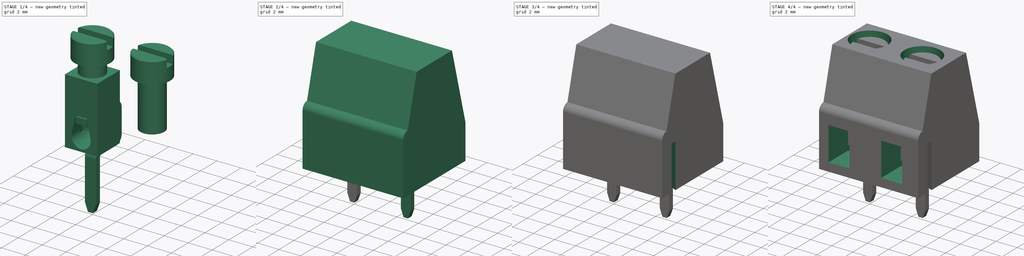
[diagram: build sequence overview — one tinted view per stage of 4, left to right]
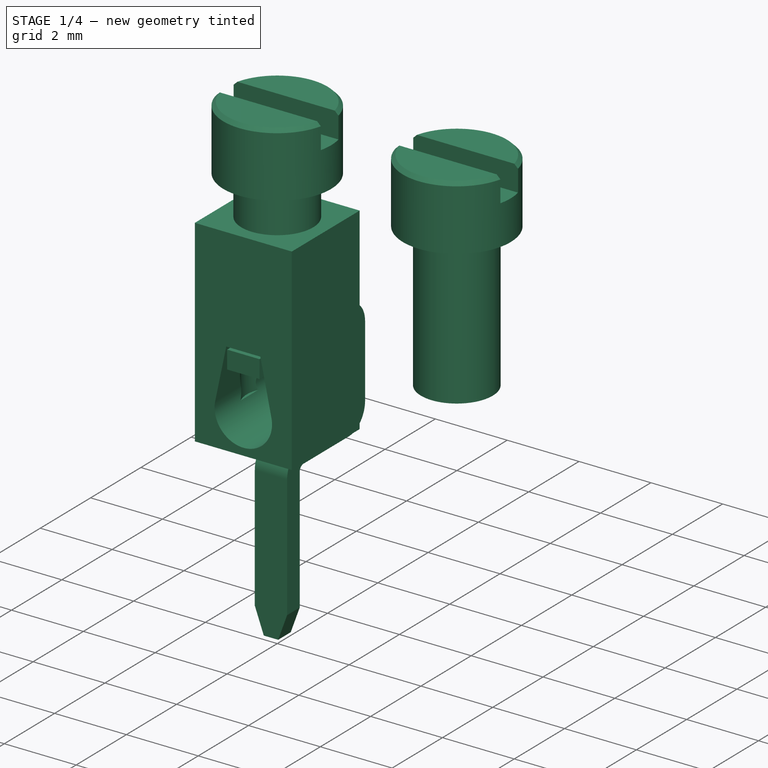
[diagram: stage 1 of 4 — iso view after this stage's code; geometry added in this stage tinted green]
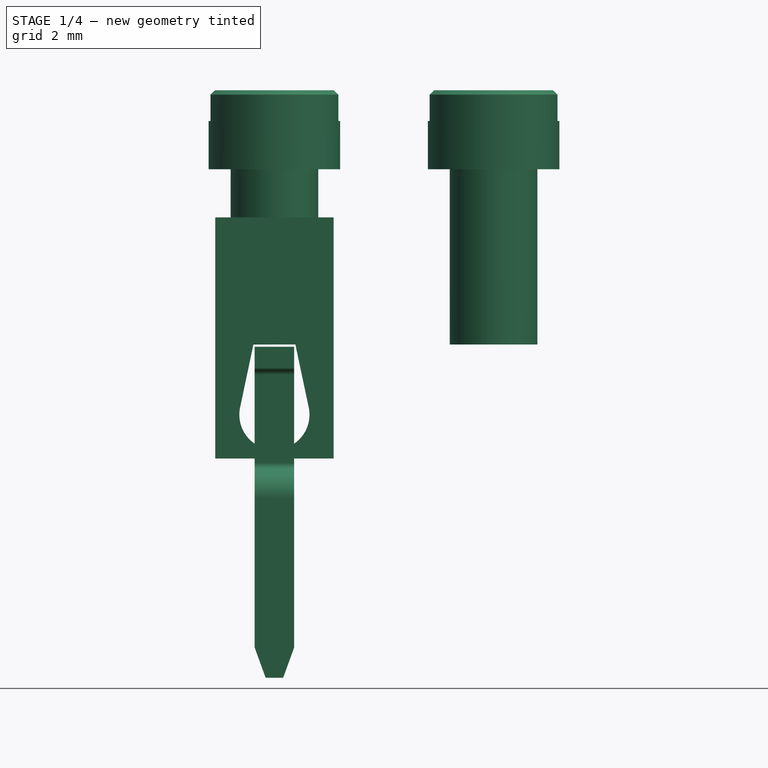
[diagram: stage 1 of 4 — front view after this stage's code; geometry added in this stage tinted green]
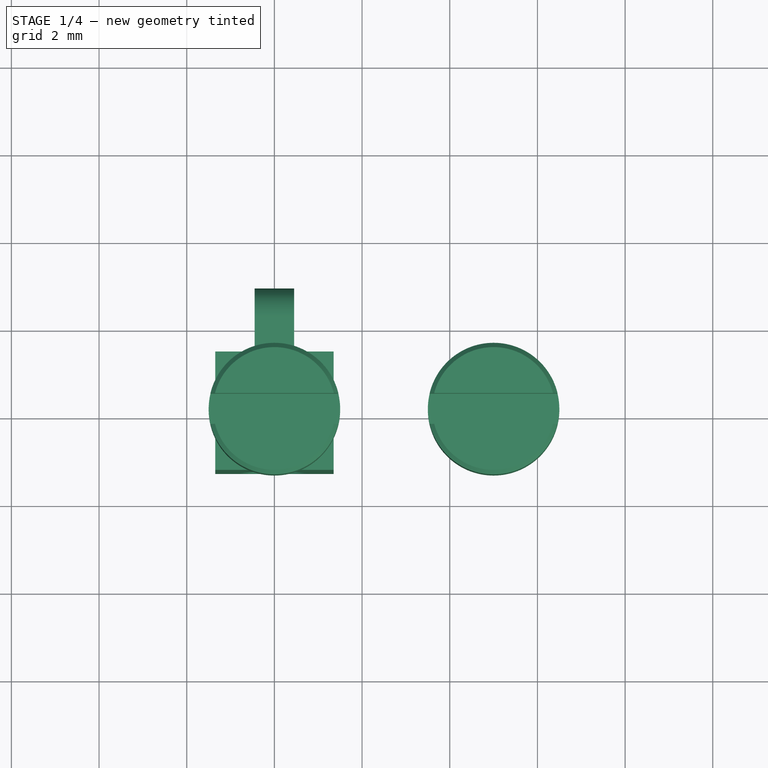
[diagram: stage 1 of 4 — top view after this stage's code; geometry added in this stage tinted green]
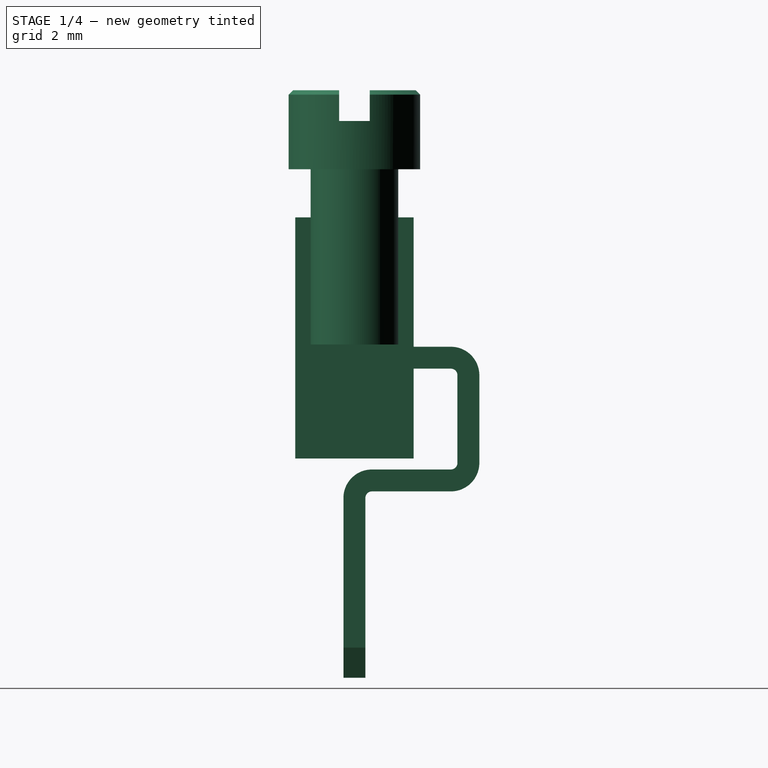
[diagram: stage 1 of 4 — right view after this stage's code; geometry added in this stage tinted green]
FCSTD DOCUMENT  (FreeCAD 1.0R38806 (Git))
Label: Amphenol ICC 01x02
License: All rights reserved
LicenseURL: http://en.wikipedia.org/wiki/All_rights_reserved
objects: Sketcher::SketchObject×6, Part::FeaturePython×6, PartDesign::Pocket×3, PartDesign::Pad×2, PartDesign::LinearPattern×2, PartDesign::Groove×1, PartDesign::Body×1, Part::Feature×1, App::Part×1
note: 42 computed .brp shape members not serialized (recipe doc carries the construction recipe); baked Part::Feature solids carry a one-line shape summary decoded from their .brp

FEATURE [Part::FeaturePython] Compound001_child2  label="Screw"  # WARN: FeaturePython — macro-defined, semantics opaque (R4)
  Base = -> Compound001
  FilterType = 1
  Invert = false
  OverrideMaxVal = 0
  WindowFrom = 80
  WindowTo = 100
  items = 2
FEATURE [Part::FeaturePython] Compound001_child003  label="Slider001"  # WARN: FeaturePython — macro-defined, semantics opaque (R4)
  Base = -> Compound001
  FilterType = 1
  Invert = false
  OverrideMaxVal = 0
  Placement = pos=(-5,0,0) rot=(0,0,1;0rad)
  WindowFrom = 80
  WindowTo = 100
  items = 0
FEATURE [Part::FeaturePython] Compound001_child004  label="Pin001"  # WARN: FeaturePython — macro-defined, semantics opaque (R4)
  Base = -> Compound001
  FilterType = 1
  Invert = false
  OverrideMaxVal = 0
  Placement = pos=(-5,0,0) rot=(0,0,1;0rad)
  WindowFrom = 80
  WindowTo = 100
  items = 1
FEATURE [Part::FeaturePython] Compound001_child005  label="Screw001"  # WARN: FeaturePython — macro-defined, semantics opaque (R4)
  Base = -> Compound001
  FilterType = 1
  Invert = false
  OverrideMaxVal = 0
  Placement = pos=(-5,0,0) rot=(0,0,1;0rad)
  WindowFrom = 80
  WindowTo = 100
  items = 2
FEATURE [App::Part] Part  label="Amphenol ICC 01x02"
  Group = -> [Body,Compound001_child0,Compound001_child1,Compound001_child2,Compound001_child003,Compound001_child004,Compound001_child005]
  Origin = -> Origin004
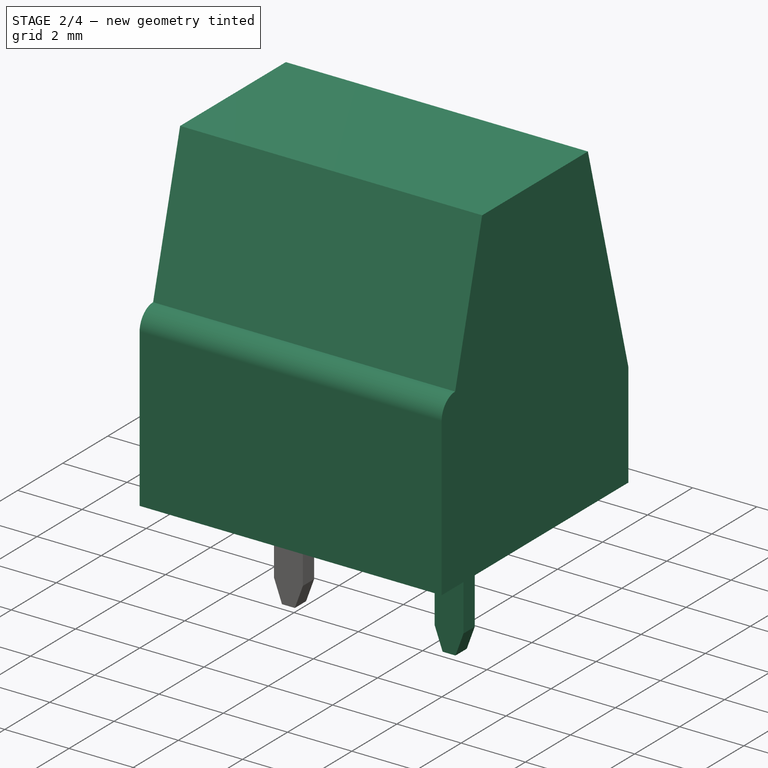
[diagram: stage 2 of 4 — iso view after this stage's code; geometry added in this stage tinted green]
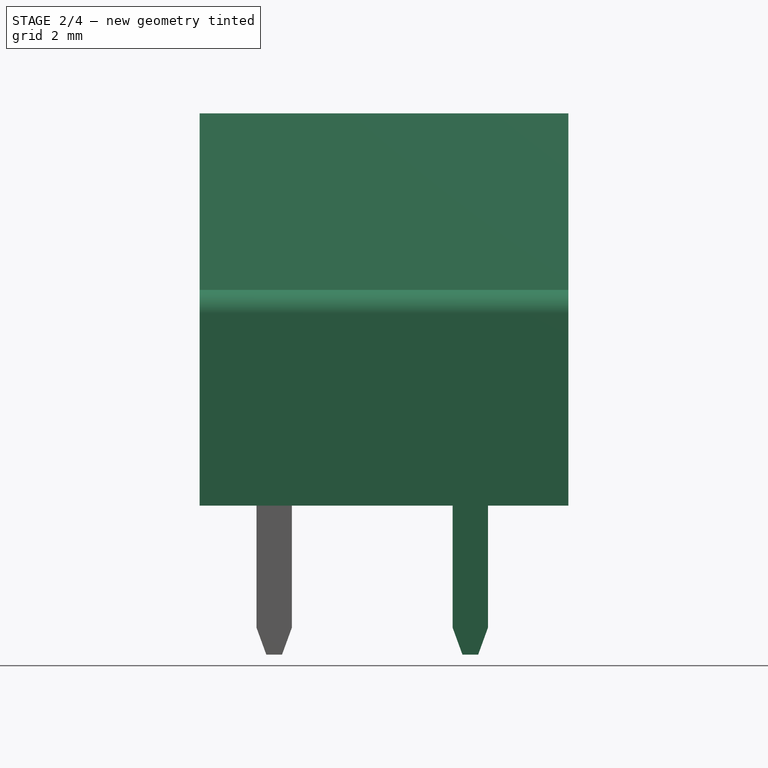
[diagram: stage 2 of 4 — front view after this stage's code; geometry added in this stage tinted green]
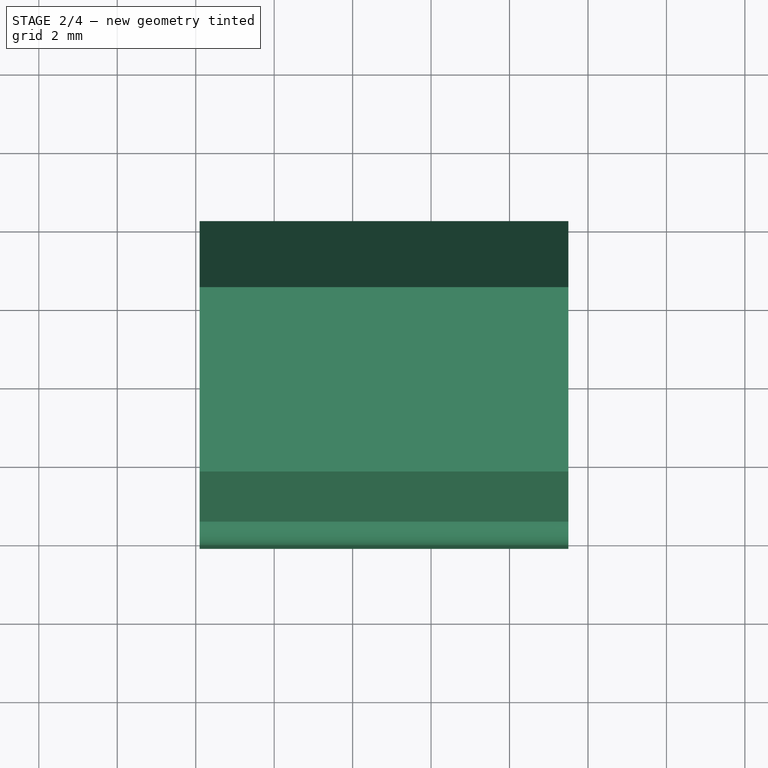
[diagram: stage 2 of 4 — top view after this stage's code; geometry added in this stage tinted green]
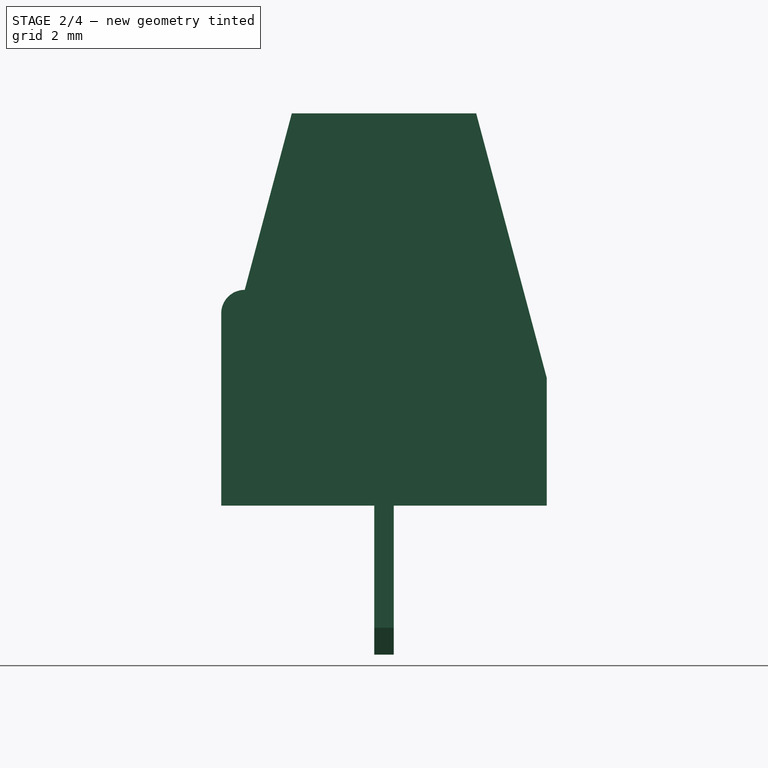
[diagram: stage 2 of 4 — right view after this stage's code; geometry added in this stage tinted green]
FEATURE [Sketcher::SketchObject] Sketch
  ArcFitTolerance = 1e-06
  AttachmentSupport = -> [YZ_Plane]
  FullyConstrained = true
  MakeInternals = false
  MapMode = 5
  Placement = pos=(0,0,0) rot=(0.57735,0.57735,0.57735;2.0944rad)
  sketch-geometry (8):
    g0: LineSegment StartX=-4.15 StartY=4.9 StartZ=0 EndX=-4.15 EndY=0 EndZ=0
    g1: LineSegment StartX=-4.15 StartY=0 StartZ=0 EndX=4.15 EndY=0 EndZ=0
    g2: LineSegment StartX=4.15 StartY=0 StartZ=0 EndX=4.15 EndY=3.25 EndZ=0
    g3: LineSegment StartX=2.35 StartY=10 StartZ=0 EndX=-2.35 EndY=10 EndZ=0
    g4: LineSegment StartX=-2.35 StartY=10 StartZ=0 EndX=-3.55 EndY=5.5 EndZ=0
    g5: LineSegment StartX=2.35 StartY=10 StartZ=0 EndX=4.15 EndY=3.25 EndZ=0
    g6: ArcOfCircle CenterX=-3.55 CenterY=4.9 CenterZ=0 NormalX=0 NormalY=0 NormalZ=1 AngleXU=0 Radius=0.6 StartAngle=1.5708 EndAngle=3.14159
    g7: GeomPoint X=3.55 Y=5.5 Z=0
  constraints (21):
    c: Coincident(g0,g1)
    c: Coincident(g1,g2)
    c: Vertical(g0)
    c: Vertical(g2)
    c: Horizontal(g1)
    c: PointOnObject(g1,g-1)
    c: Coincident(g4,g6)
    c: Coincident(g3,g4)
    c: Coincident(g3,g5)
    c: Coincident(g5,g2)
    c: Tangent(g0,g6) = -1.5708
    c: Vertical(g6,g4)
    c: DistanceY(g-1,g4) = 5.5
    c: Radius(g6) = 0.6
    c: DistanceY(g-1,g3) = 10
    c: DistanceX(g-1,g1) = 4.15
    c: DistanceX(g1,g1) = 8.3
    c: DistanceX(g3,g3) = 4.7
    c: PointOnObject(g7,g5)
    c: Symmetric(g4,g7,g-2)
    c: Symmetric(g3,g3,g-2)
FEATURE [PartDesign::Pad] Pad
  Direction = (1,0,0)
  Length = 7.5
  Length2 = 1.9
  Placement = pos=(0,0,0) rot=(1,1,1;2.0944rad)
  Profile = -> Sketch
  ReferenceAxis = -> Sketch [N_Axis]
  Refine = true
  Suppressed = false
  Type = 4
FEATURE [PartDesign::Body] Body  label="Connector housing"
  AllowCompound = false
  Group = -> [Sketch,Pad,Sketch001,Sketch004,Pad001,Sketch005,Pocket002,LinearPattern001,Pocket,Sketch002,Pocket001,Sketch003,Groove,LinearPattern]
  Origin = -> Origin
  Tip = -> Pocket002
FEATURE [Part::Feature] Compound001
  Placement = pos=(5,0,0) rot=(0,0,1;0rad)
  shape: bbox 3 x 4.35 x 13.4 mm, 48 faces, 3 solids (baked)
FEATURE [Part::FeaturePython] Compound001_child0  label="Slider"  # WARN: FeaturePython — macro-defined, semantics opaque (R4)
  Base = -> Compound001
  FilterType = 1
  Invert = false
  OverrideMaxVal = 0
  WindowFrom = 80
  WindowTo = 100
  items = 0
FEATURE [Part::FeaturePython] Compound001_child1  label="Pin"  # WARN: FeaturePython — macro-defined, semantics opaque (R4)
  Base = -> Compound001
  FilterType = 1
  Invert = false
  OverrideMaxVal = 0
  WindowFrom = 80
  WindowTo = 100
  items = 1
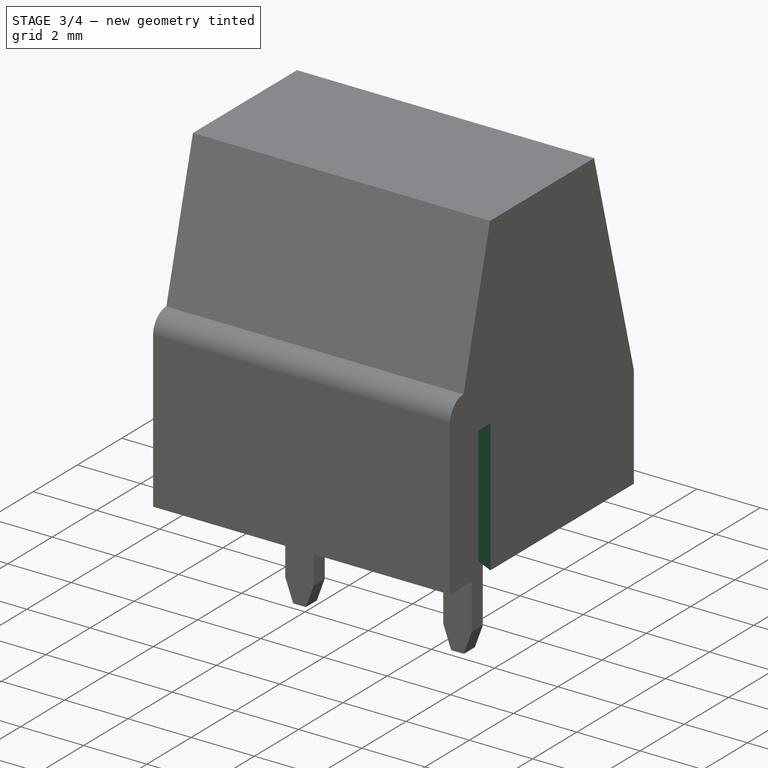
[diagram: stage 3 of 4 — iso view after this stage's code; geometry added in this stage tinted green]
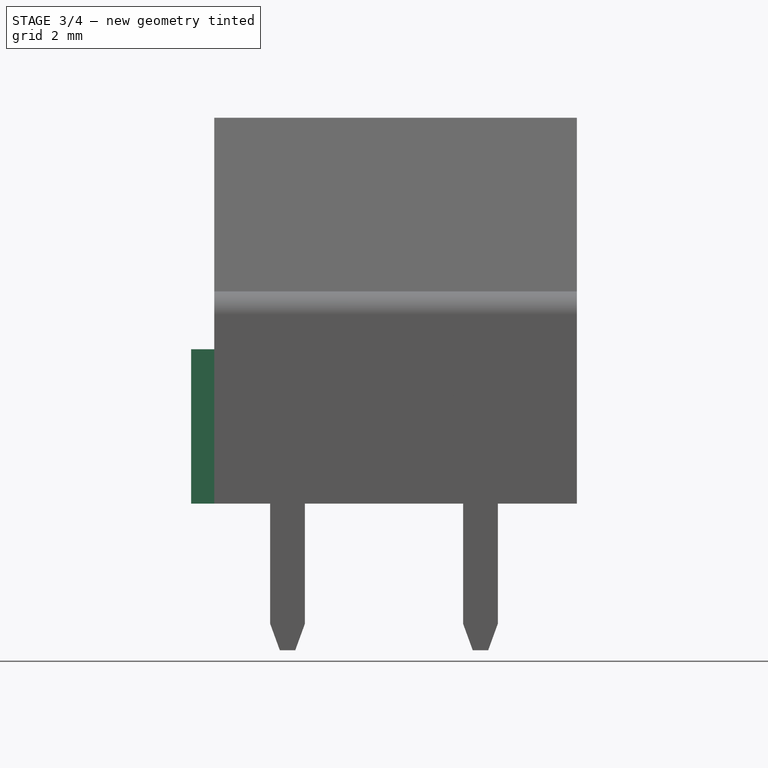
[diagram: stage 3 of 4 — front view after this stage's code; geometry added in this stage tinted green]
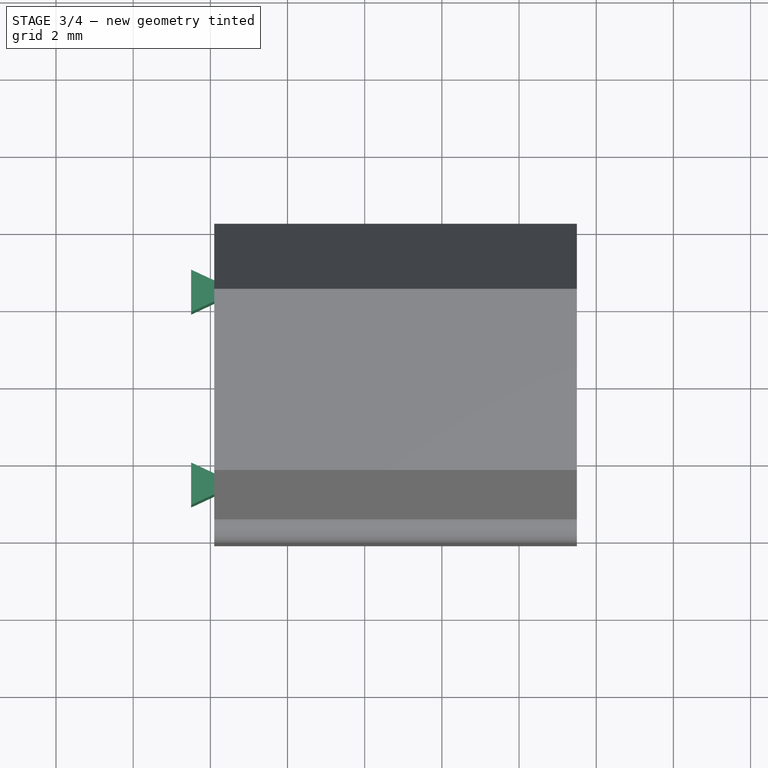
[diagram: stage 3 of 4 — top view after this stage's code; geometry added in this stage tinted green]
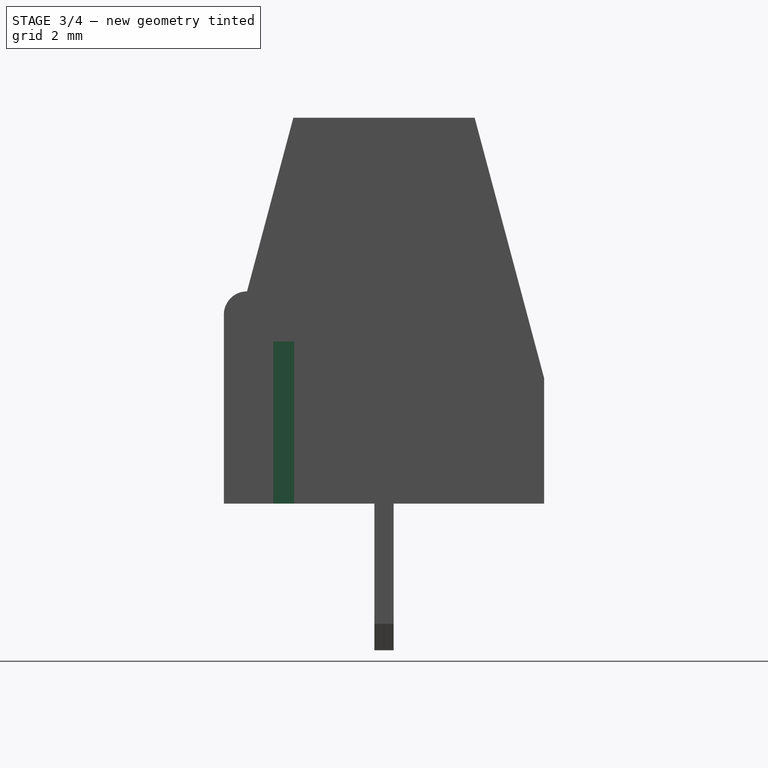
[diagram: stage 3 of 4 — right view after this stage's code; geometry added in this stage tinted green]
FEATURE [Sketcher::SketchObject] Sketch001
  ArcFitTolerance = 1e-06
  AttachmentSupport = -> [XZ_Plane]
  FullyConstrained = true
  MakeInternals = false
  MapMode = 5
  Placement = pos=(0,0,0) rot=(1,0,0;1.5708rad)
  sketch-geometry (4):
    g0: LineSegment StartX=-1 StartY=4 StartZ=0 EndX=-1 EndY=0.8 EndZ=0
    g1: LineSegment StartX=-1 StartY=0.8 StartZ=0 EndX=1 EndY=0.8 EndZ=0
    g2: LineSegment StartX=1 StartY=0.8 StartZ=0 EndX=1 EndY=4 EndZ=0
    g3: LineSegment StartX=1 StartY=4 StartZ=0 EndX=-1 EndY=4 EndZ=0
  constraints (11):
    c: Coincident(g0,g1)
    c: Coincident(g1,g2)
    c: Coincident(g2,g3)
    c: Coincident(g3,g0)
    c: Vertical(g0)
    c: Vertical(g2)
    c: Horizontal(g1)
    c: DistanceX(g1,g1) = 2
    c: Symmetric(g2,g0,g-2)
    c: Distance(g0,g-1) = 0.8
    c: DistanceY(g0,g0) = 3.2
FEATURE [Sketcher::SketchObject] Sketch002
  ArcFitTolerance = 1e-06
  AttachmentSupport = -> [XY_Plane]
  FullyConstrained = true
  MakeInternals = false
  MapMode = 5
  sketch-geometry (4):
    g0: LineSegment StartX=-1.5 StartY=1.5 StartZ=0 EndX=-1.5 EndY=-1.5 EndZ=0
    g1: LineSegment StartX=-1.5 StartY=-1.5 StartZ=0 EndX=1.5 EndY=-1.5 EndZ=0
    g2: LineSegment StartX=1.5 StartY=-1.5 StartZ=0 EndX=1.5 EndY=1.5 EndZ=0
    g3: LineSegment StartX=1.5 StartY=1.5 StartZ=0 EndX=-1.5 EndY=1.5 EndZ=0
  constraints (11):
    c: Coincident(g0,g1)
    c: Coincident(g1,g2)
    c: Coincident(g2,g3)
    c: Coincident(g3,g0)
    c: Vertical(g0)
    c: Vertical(g2)
    c: Horizontal(g1)
    c: Horizontal(g3)
    c: Symmetric(g0,g2,g-1)
    c: DistanceX(g3,g3) = 3
    c: Equal(g2,g3)
FEATURE [Sketcher::SketchObject] Sketch003
  ArcFitTolerance = 1e-06
  AttachmentSupport = -> [YZ_Plane]
  FullyConstrained = true
  MakeInternals = false
  MapMode = 5
  Placement = pos=(0,0,0) rot=(0.57735,0.57735,0.57735;2.0944rad)
  sketch-geometry (6):
    g0: LineSegment StartX=0 StartY=6.6 StartZ=0 EndX=1e-16 EndY=10.2 EndZ=0
    g1: LineSegment StartX=1e-16 StartY=10.2 StartZ=0 EndX=1.7 EndY=10.2 EndZ=0
    g2: LineSegment StartX=1.7 StartY=10.2 StartZ=0 EndX=1.7 EndY=7.7 EndZ=0
    g3: LineSegment StartX=1.7 StartY=7.7 StartZ=0 EndX=1.1 EndY=7.7 EndZ=0
    g4: LineSegment StartX=1.1 StartY=7.7 StartZ=0 EndX=1.1 EndY=6.6 EndZ=0
    g5: LineSegment StartX=1.1 StartY=6.6 StartZ=0 EndX=0 EndY=6.6 EndZ=0
  constraints (18):
    c: PointOnObject(g0,g-2)
    c: PointOnObject(g0,g-2)
    c: Coincident(g0,g1)
    c: Horizontal(g1)
    c: Coincident(g1,g2)
    c: Vertical(g2)
    c: Coincident(g2,g3)
    c: Horizontal(g3)
    c: Coincident(g3,g4)
    c: Vertical(g4)
    c: Coincident(g4,g5)
    c: Coincident(g5,g0)
    c: Horizontal(g5)
    c: DistanceY(g-1,g0) = 6.6
    c: DistanceY(g-1,g0) = 10.2
    c: DistanceY(g2,g2) = 2.5
    c: DistanceX(g5,g5) = 1.1
    c: DistanceX(g1,g1) = 1.7
FEATURE [Sketcher::SketchObject] Sketch004
  ArcFitTolerance = 1e-06
  AttachmentSupport = -> [XY_Plane]
  FullyConstrained = true
  MakeInternals = false
  MapMode = 5
  sketch-geometry (5):
    g0: LineSegment StartX=-1.8 StartY=-2.82358 StartZ=0 EndX=-1.8 EndY=-2.37642 EndZ=0
    g1: LineSegment StartX=-1.8 StartY=-2.37642 StartZ=0 EndX=-2.5 EndY=-2.05 EndZ=0
    g2: LineSegment StartX=-2.5 StartY=-2.05 StartZ=0 EndX=-2.5 EndY=-3.15 EndZ=0
    g3: LineSegment StartX=-2.5 StartY=-3.15 StartZ=0 EndX=-1.8 EndY=-2.82358 EndZ=0
    g4: LineSegment [constr] StartX=-2.5 StartY=-2.6 StartZ=0 EndX=0 EndY=-2.6 EndZ=0
  constraints (14):
    c: Coincident(g0,g1)
    c: Coincident(g1,g2)
    c: Coincident(g2,g3)
    c: Coincident(g3,g0)
    c: Vertical(g0)
    c: DistanceX(g0,g-1) = 1.8
    c: DistanceX(g1,g-1) = 2.5
    c: Angle(g1,g3) = 0.872665
    c: Symmetric(g2,g2,g4)
    c: PointOnObject(g4,g-2)
    c: Symmetric(g1,g2,g4)
    c: Symmetric(g0,g0,g4)
    c: DistanceY(g4,g-1) = 2.6
    c: DistanceY(g2,g2) = 1.1
FEATURE [PartDesign::Pad] Pad001
  BaseFeature = -> Pad
  Direction = (0,0,1)
  Length = 4
  Length2 = 10
  Placement = pos=(0,0,0) rot=(1,1,1;2.0944rad)
  Profile = -> Sketch004
  ReferenceAxis = -> Sketch004 [N_Axis]
  Refine = true
  Suppressed = false
  Type = 0
FEATURE [Sketcher::SketchObject] Sketch005
  ArcFitTolerance = 1e-06
  AttachmentSupport = -> [XY_Plane]
  ExternalGeometry = -> [Sketch004]
  FullyConstrained = true
  MakeInternals = false
  MapMode = 5
  sketch-geometry (4):
    g0: LineSegment StartX=6.9 StartY=-2.05 StartZ=0 EndX=6.9 EndY=-3.15 EndZ=0
    g1: LineSegment StartX=6.9 StartY=-3.15 StartZ=0 EndX=7.6 EndY=-2.82358 EndZ=0
    g2: LineSegment StartX=7.6 StartY=-2.82358 StartZ=0 EndX=7.6 EndY=-2.37642 EndZ=0
    g3: LineSegment StartX=7.6 StartY=-2.37642 StartZ=0 EndX=6.9 EndY=-2.05 EndZ=0
  constraints (12):
    c: Coincident(g0,g1)
    c: Coincident(g1,g2)
    c: Coincident(g2,g3)
    c: Coincident(g3,g0)
    c: Vertical(g0)
    c: Vertical(g2)
    c: Horizontal(g-5,g0)
    c: Horizontal(g-5,g2)
    c: Equal(g-5,g3)
    c: Horizontal(g0,g-3)
    c: Horizontal(g-4,g1)
    c: DistanceX(g-3,g0) = 9.4
FEATURE [PartDesign::Pocket] Pocket002
  BaseFeature = -> Pad001
  Direction = (0,0,-1)
  Length = 4.2
  Length2 = 5
  Placement = pos=(0,0,0) rot=(1,1,1;2.0944rad)
  Profile = -> Sketch005
  ReferenceAxis = -> Sketch005 [N_Axis]
  Refine = true
  Reversed = true
  Suppressed = false
  Type = 0
FEATURE [PartDesign::LinearPattern] LinearPattern001
  BaseFeature = -> Pocket002
  Direction = -> Y_Axis
  Length = 5
  Mode = 0
  Occurrences = 2
  Offset = 5
  Originals = -> [Pad001]
  Placement = pos=(0,0,0) rot=(1,1,1;2.0944rad)
  Refine = true
  Suppressed = false
  TransformMode = 0
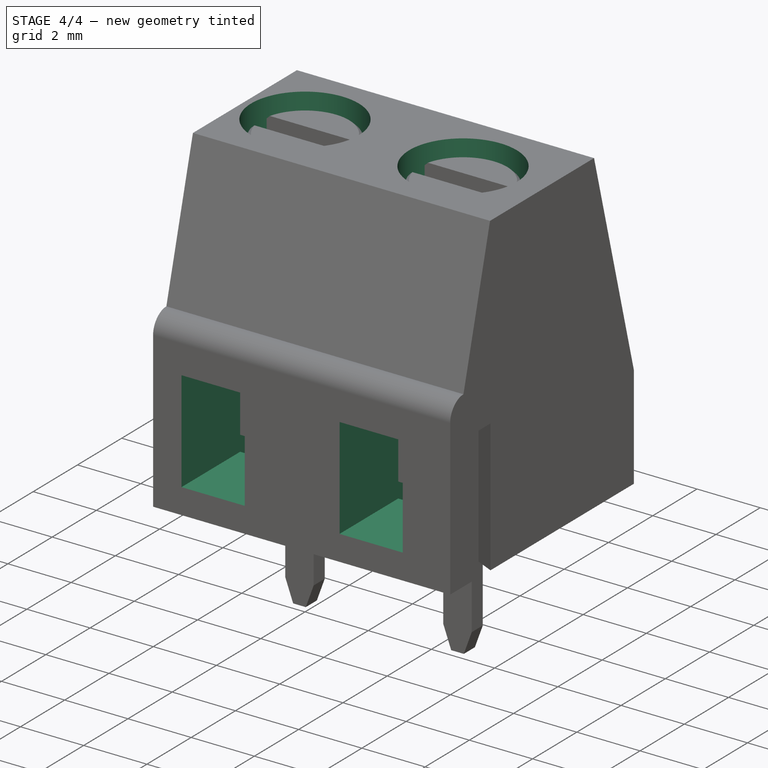
[diagram: stage 4 of 4 — iso view after this stage's code; geometry added in this stage tinted green]
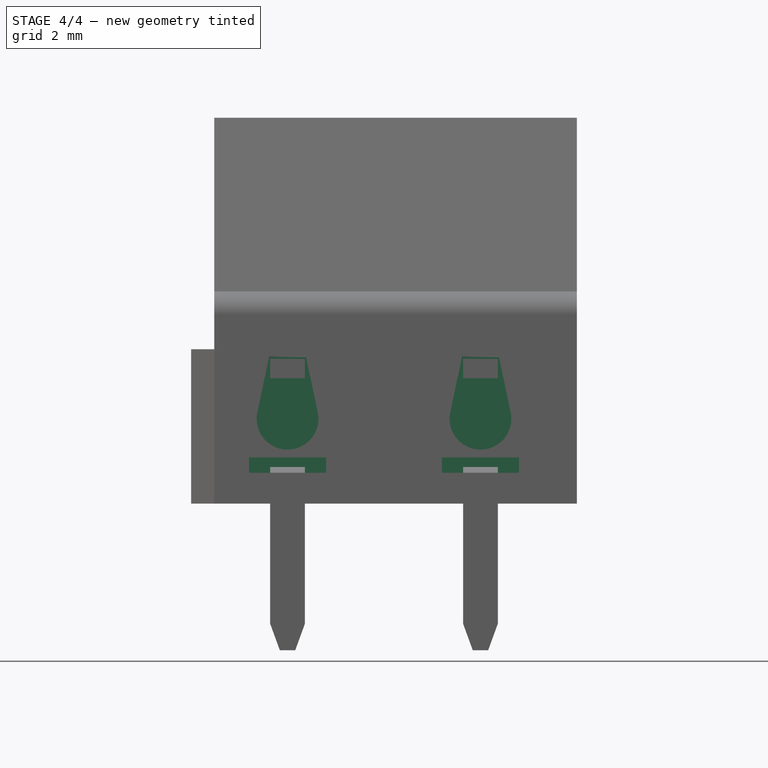
[diagram: stage 4 of 4 — front view after this stage's code; geometry added in this stage tinted green]
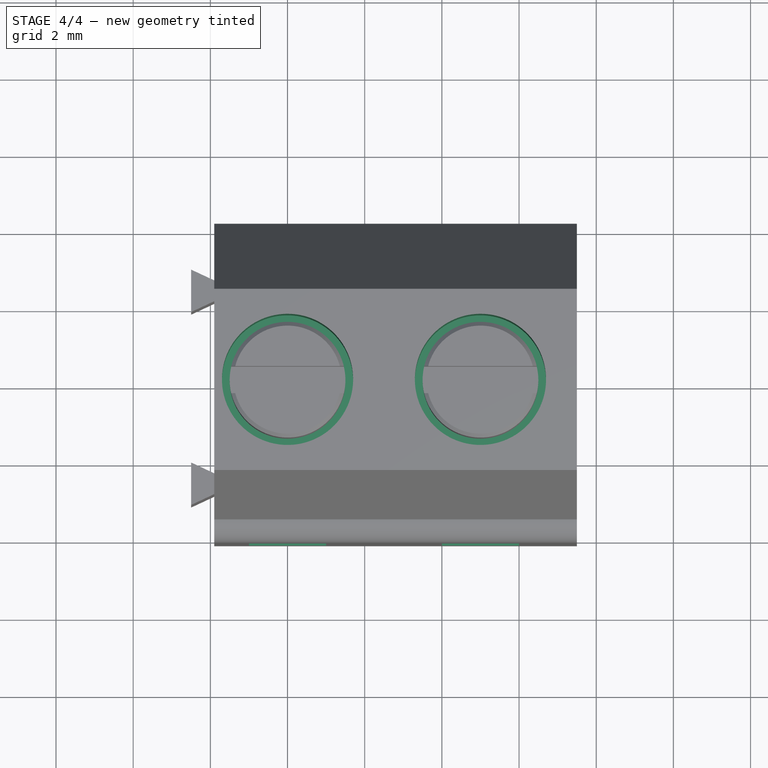
[diagram: stage 4 of 4 — top view after this stage's code; geometry added in this stage tinted green]
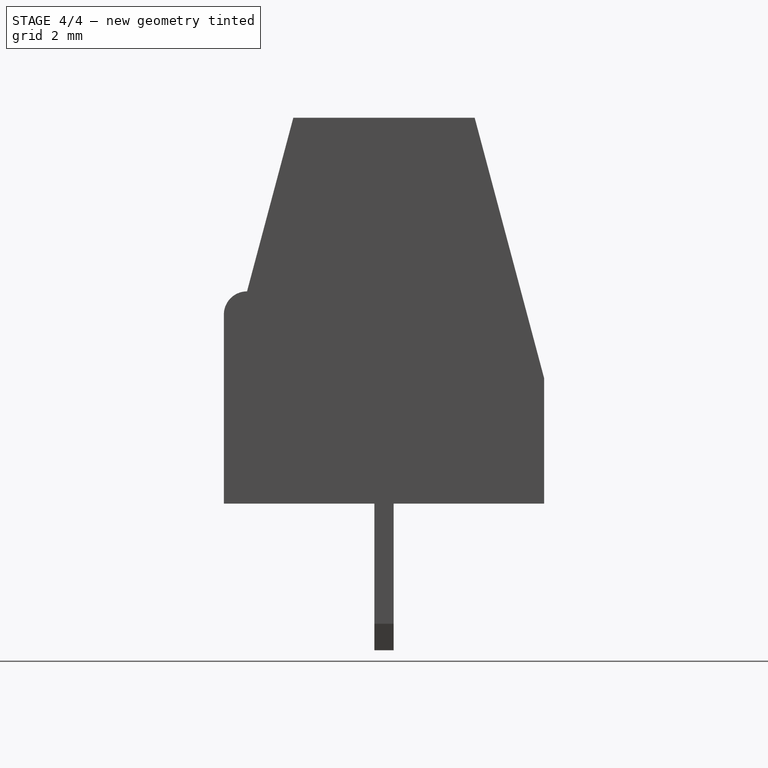
[diagram: stage 4 of 4 — right view after this stage's code; geometry added in this stage tinted green]
FEATURE [PartDesign::Pocket] Pocket
  BaseFeature = -> LinearPattern001
  Direction = (0,1,-2e-16)
  Length = 5
  Length2 = 5
  Placement = pos=(0,0,0) rot=(1,1,1;2.0944rad)
  Profile = -> Sketch001
  ReferenceAxis = -> Sketch001 [N_Axis]
  Refine = true
  Reversed = true
  Suppressed = false
  Type = 1
FEATURE [PartDesign::Pocket] Pocket001
  BaseFeature = -> Pocket
  Direction = (0,0,-1)
  Length = 7
  Length2 = 5
  Placement = pos=(0,0,0) rot=(1,1,1;2.0944rad)
  Profile = -> Sketch002
  ReferenceAxis = -> Sketch002 [N_Axis]
  Refine = true
  Reversed = true
  Suppressed = false
  Type = 0
FEATURE [PartDesign::Groove] Groove
  Angle = 360
  Angle2 = 60
  Axis = (0,0,1)
  Base = (0,0,0)
  BaseFeature = -> Pocket001
  Placement = pos=(0,0,0) rot=(1,1,1;2.0944rad)
  Profile = -> Sketch003
  ReferenceAxis = -> Sketch003 [V_Axis]
  Refine = true
  Suppressed = false
  Type = 0
FEATURE [PartDesign::LinearPattern] LinearPattern
  BaseFeature = -> Groove
  Direction = -> Sketch001 [H_Axis]
  Length = 5
  Mode = 0
  Occurrences = 2
  Offset = 5
  Originals = -> [Pocket,Pocket001,Groove]
  Placement = pos=(0,0,0) rot=(1,1,1;2.0944rad)
  Refine = true
  Suppressed = false
  TransformMode = 0
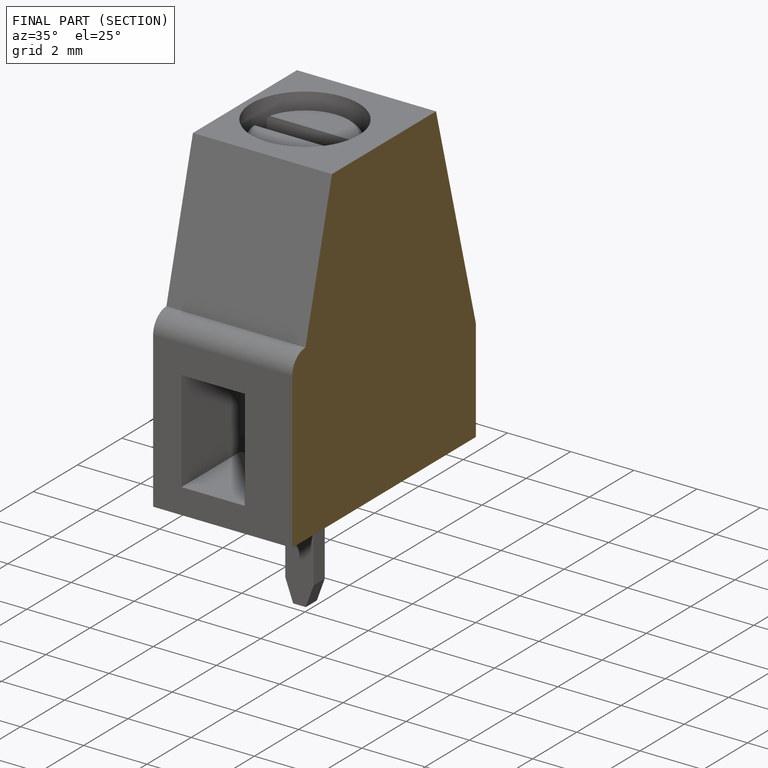
[diagram: finished part — half-section view (interior)]
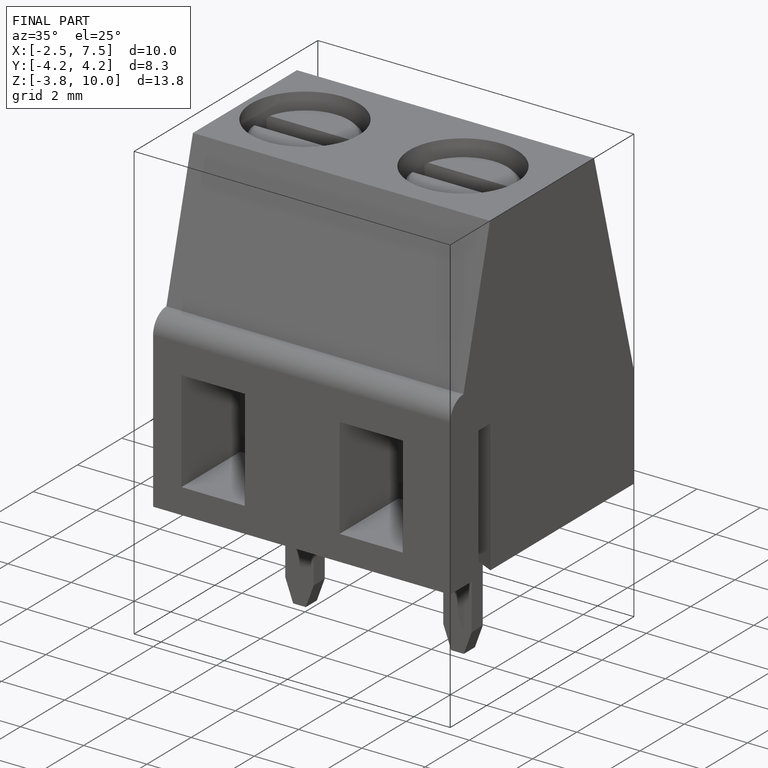
[diagram: finished part — iso view with bounding-box wireframe]
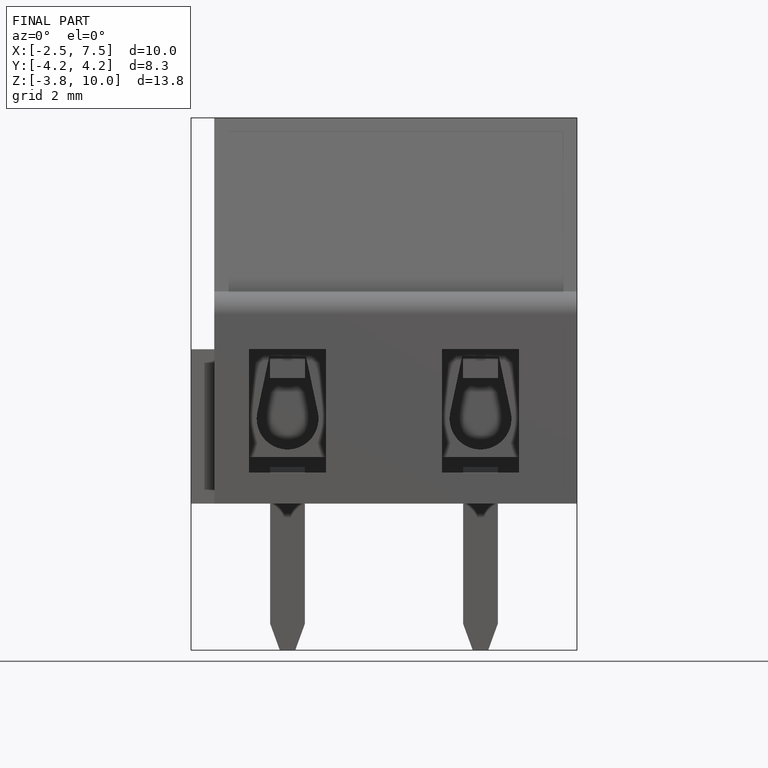
[diagram: finished part — front view with bounding-box wireframe]
